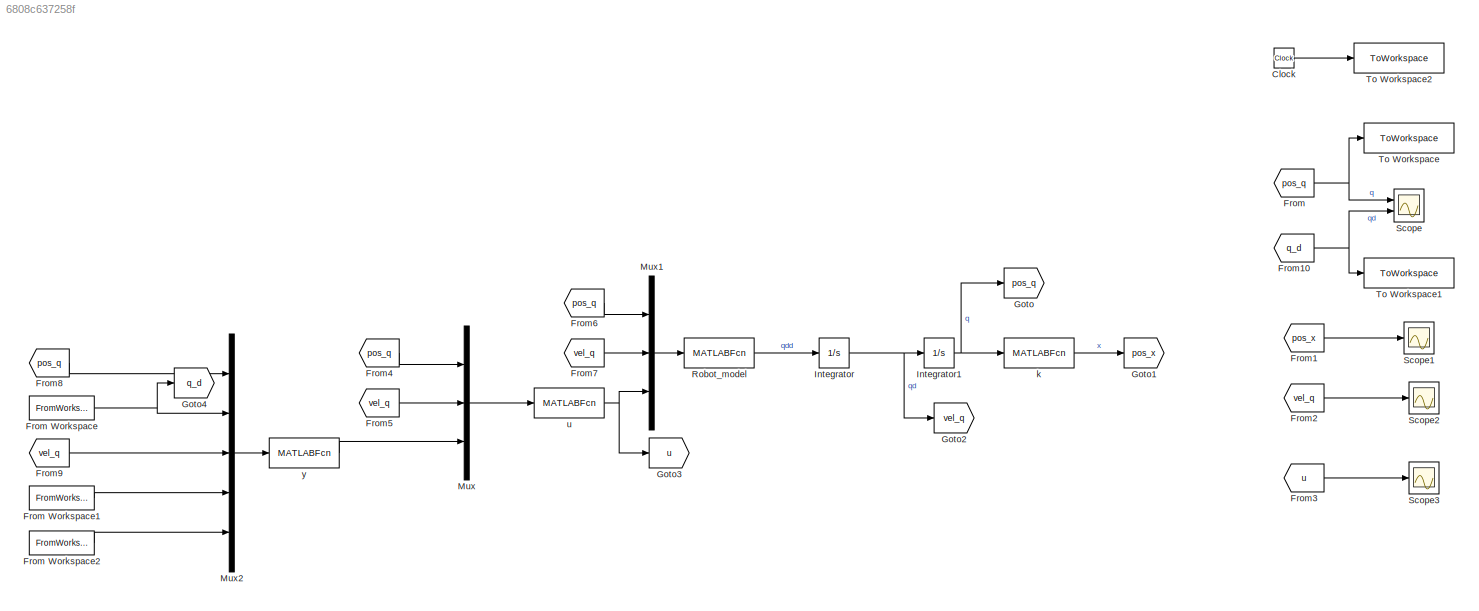
MODEL slx_6808c637258f
KIND model
CONFIG AbsTol = auto
CONFIG EnableMultiTasking = off
CONFIG FixedStep = auto
CONFIG MaxStep = auto
CONFIG MinStep = auto
CONFIG RelTol = 1e-3
CONFIG SampleTimeConstraint = Unconstrained
CONFIG Solver = VariableStepAuto
CONFIG SolverName = VariableStepAuto
CONFIG StartTime = 0.0
CONFIG StopTime = 10
BLOCK [Clock] Clock
  Decimation = 1
BLOCK [From] From
  GotoTag = pos_q
BLOCK [FromWorkspace] From Workspace
  VariableName = [tt' posd]
BLOCK [FromWorkspace] From Workspace1
  VariableName = [tt' veld]
BLOCK [FromWorkspace] From Workspace2
  VariableName = [tt' accd]
BLOCK [From] From1
  GotoTag = pos_x
BLOCK [From] From10
  GotoTag = q_d
BLOCK [From] From2
  GotoTag = vel_q
BLOCK [From] From3
  GotoTag = u
BLOCK [From] From4
  GotoTag = pos_q
BLOCK [From] From5
  GotoTag = vel_q
BLOCK [From] From6
  GotoTag = pos_q
BLOCK [From] From7
  GotoTag = vel_q
BLOCK [From] From8
  GotoTag = pos_q
BLOCK [From] From9
  GotoTag = vel_q
BLOCK [Goto] Goto
  GotoTag = pos_q
BLOCK [Goto] Goto1
  GotoTag = pos_x
BLOCK [Goto] Goto2
  GotoTag = vel_q
BLOCK [Goto] Goto3
  GotoTag = u
BLOCK [Goto] Goto4
  GotoTag = q_d
BLOCK [Integrator] Integrator
  Ports = [1, 1]
BLOCK [Integrator] Integrator1
  InitialCondition = q0
  Ports = [1, 1]
BLOCK [Mux] Mux
  DisplayOption = bar
  Inputs = [6 6 6]
  Ports = [3, 1]
BLOCK [Mux] Mux1
  DisplayOption = bar
  Inputs = [6 6 6]
  Ports = [3, 1]
BLOCK [Mux] Mux2
  DisplayOption = bar
  Inputs = [6 6 6 6 6]
  Ports = [5, 1]
BLOCK [MATLABFcn] Robot_model
  MATLABFcn = Abb_model_matrix
  OutputDimensions = 6
  Ports = [1, 1]
BLOCK [Scope] Scope
  Floating = off
  NumInputPorts = 2
  Ports = [2]
  ScopeSpecificationString = Simulink.scopes.TimeScopeBlockCfg('CurrentConfiguration', extmgr.ConfigurationSet(extmgr.Configuration('Core','General UI',true),extmgr.Configuration('Core','Source UI',true),extmgr.Configuration('Sources','WiredSimulink',true),extmgr.Configuration('Visuals','Time Domain',true,'SerializedDisplays',{struct('MinYLimReal','-0.19635','MaxYLimReal','1.76711','YLabelReal','','MinYLimMag','0.00000','MaxY...<+1715ch>
BLOCK [Scope] Scope1
  Floating = off
  NumInputPorts = 1
  Ports = [1]
  ScopeSpecificationString = Simulink.scopes.TimeScopeBlockCfg('CurrentConfiguration', extmgr.ConfigurationSet(extmgr.Configuration('Core','General UI',true),extmgr.Configuration('Core','Source UI',true),extmgr.Configuration('Sources','WiredSimulink',true,'DataLoggingVariableName','ScopeData1'),extmgr.Configuration('Visuals','Time Domain',true,'SerializedDisplays',{struct('MinYLimReal','-3.73064','MaxYLimReal','2.15984','YLab...<+1539ch>
BLOCK [Scope] Scope2
  Floating = off
  NumInputPorts = 1
  Ports = [1]
  ScopeSpecificationString = Simulink.scopes.TimeScopeBlockCfg('CurrentConfiguration', extmgr.ConfigurationSet(extmgr.Configuration('Core','General UI',true),extmgr.Configuration('Core','Source UI',true),extmgr.Configuration('Sources','WiredSimulink',true,'DataLoggingVariableName','ScopeData2'),extmgr.Configuration('Visuals','Time Domain',true),extmgr.Configuration('Tools','Plot Navigation',true),extmgr.Configuration('Tools',...<+40ch>
BLOCK [Scope] Scope3
  Floating = off
  NumInputPorts = 1
  Ports = [1]
  ScopeSpecificationString = Simulink.scopes.TimeScopeBlockCfg('CurrentConfiguration', extmgr.ConfigurationSet(extmgr.Configuration('Core','General UI',true),extmgr.Configuration('Core','Source UI',true),extmgr.Configuration('Sources','WiredSimulink',true,'DataLoggingVariableName','ScopeData3'),extmgr.Configuration('Visuals','Time Domain',true,'SerializedDisplays',{struct('MinYLimReal','-22.56713','MaxYLimReal','2.50785','YLa...<+1421ch>
BLOCK [ToWorkspace] To Workspace
  FixptAsFi = on
  MaxDataPoints = inf
  Ports = [1]
  SampleTime = -1
  VariableName = pos_r
BLOCK [ToWorkspace] To Workspace1
  FixptAsFi = on
  MaxDataPoints = inf
  Ports = [1]
  SampleTime = -1
  VariableName = pos_r_d
BLOCK [ToWorkspace] To Workspace2
  FixptAsFi = on
  MaxDataPoints = inf
  Ports = [1]
  SampleTime = -1
  VariableName = time
BLOCK [MATLABFcn] k
  MATLABFcn = dir_kin
  Ports = [1, 1]
BLOCK [MATLABFcn] u
  MATLABFcn = inv_dyn
  OutputDimensions = 6
  Ports = [1, 1]
BLOCK [MATLABFcn] y
  MATLABFcn = aux_y
  Ports = [1, 1]
LINE Clock:1 -> To Workspace2:1
LINE From Workspace1:1 -> Mux2:4
LINE From Workspace2:1 -> Mux2:5
NET From Workspace:1 -> Goto4:1, Mux2:2
NET From10:1 -> Scope:2, To Workspace1:1
LINE From1:1 -> Scope1:1
LINE From2:1 -> Scope2:1
LINE From3:1 -> Scope3:1
LINE From4:1 -> Mux:1
LINE From5:1 -> Mux:2
LINE From6:1 -> Mux1:1
LINE From7:1 -> Mux1:2
LINE From8:1 -> Mux2:1
LINE From9:1 -> Mux2:3
NET From:1 -> Scope:1, To Workspace:1
NET Integrator1:1 -> Goto:1, k:1
NET Integrator:1 -> Goto2:1, Integrator1:1
LINE Mux1:1 -> Robot_model:1
LINE Mux2:1 -> y:1
LINE Mux:1 -> u:1
LINE Robot_model:1 -> Integrator:1
LINE k:1 -> Goto1:1
NET u:1 -> Goto3:1, Mux1:3
LINE y:1 -> Mux:3
note: NET lines group one-source signal fan-out (src -> all destinations, sorted); 1:1 wires keep LINE
